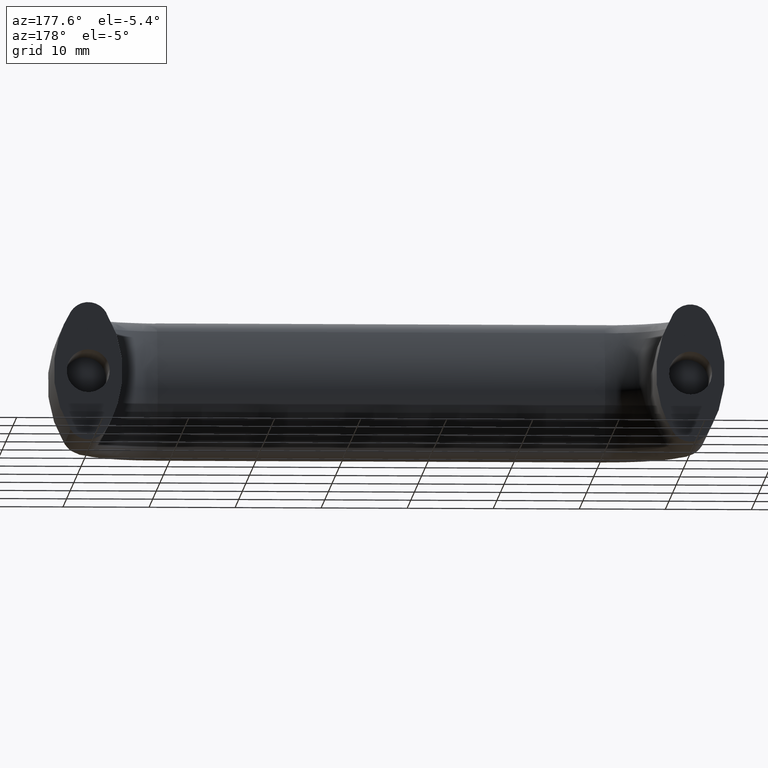
[diagram: clean part render]
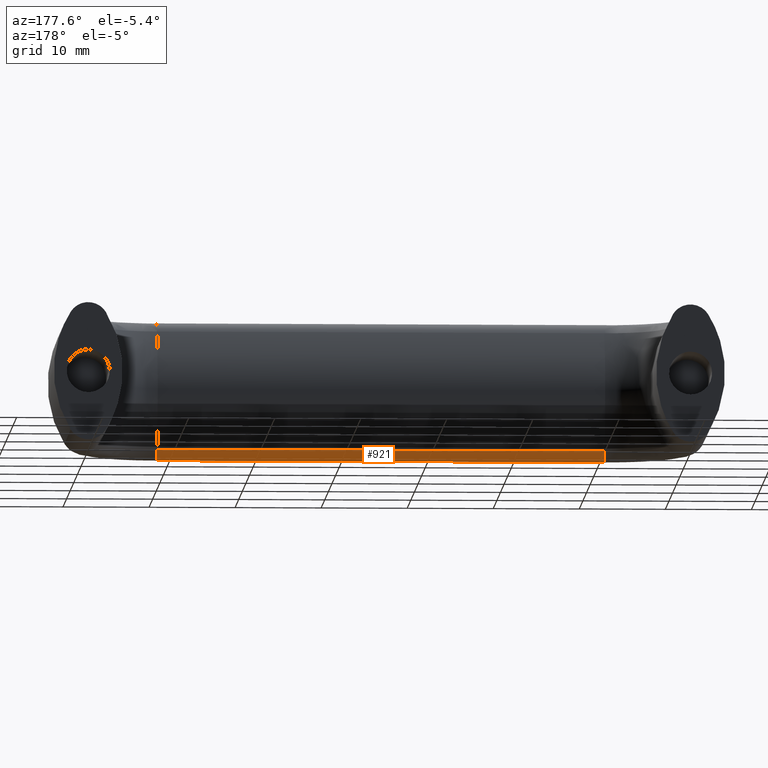
[diagram: same view with one face highlighted and labeled with its STEP entity id]
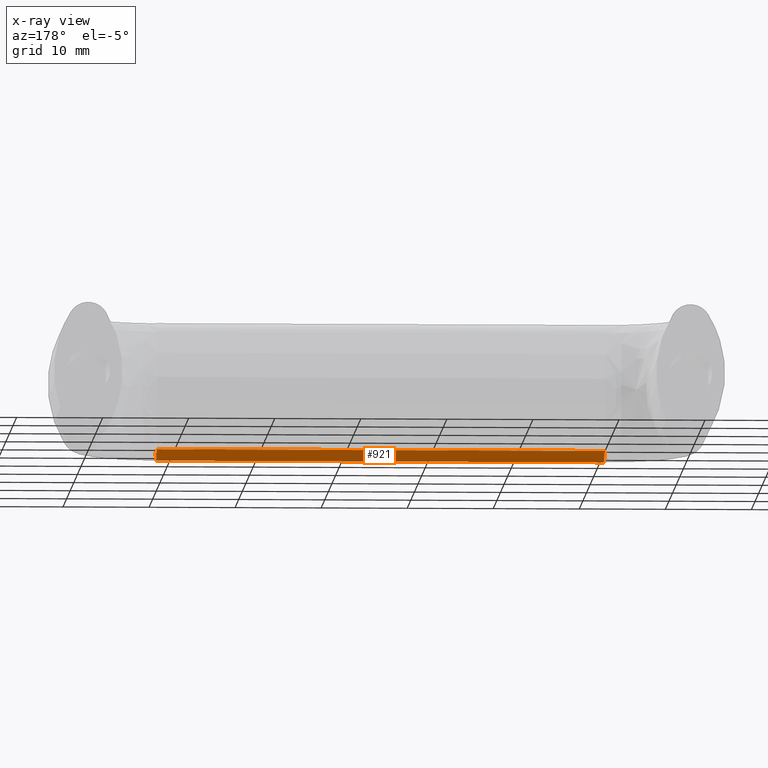
[diagram: x-ray of the same camera — body ghosted, the highlighted face saturated]
A machine part, auxiliary view. The second image highlights one B-rep face of the part: STEP entity #921.
The next image is the same camera in x-ray: the body ghosted, the highlighted face saturated — about 0% of this face is hidden behind the body in this view.
In plain terms, the highlighted face is a freeform B-spline surface patch.
Its self-contained STEP definition (entity closure, byte-faithful):
#676=CARTESIAN_POINT('',(61.0,-28.037735849056599,-6.867924528301869));
#677=VERTEX_POINT('',#676);
#691=CARTESIAN_POINT('',(61.0,-23.962264150943401,-6.867924528301880));
#692=VERTEX_POINT('',#691);
#693=CARTESIAN_POINT('',(61.0,-23.962264150943390,-6.867924528301884));
#694=CARTESIAN_POINT('',(61.0,-24.666666666666671,-8.0));
#695=CARTESIAN_POINT('',(61.0,-26.0,-8.0));
#696=CARTESIAN_POINT('',(61.0,-27.333333333333343,-8.0));
#697=CARTESIAN_POINT('',(61.0,-28.037735849056610,-6.867924528301876));
#705=(BOUNDED_CURVE()B_SPLINE_CURVE(2,(#693,#694,#695,#696,#697),.UNSPECIFIED.,.F.,.U.)B_SPLINE_CURVE_WITH_KNOTS((3,2,3),(0.0,0.500000000000000,1.0),.UNSPECIFIED.)CURVE()GEOMETRIC_REPRESENTATION_ITEM()RATIONAL_B_SPLINE_CURVE((1.0,0.874157276121537,1.0,0.874157276121537,1.0))REPRESENTATION_ITEM(''));
#706=EDGE_CURVE('',#692,#677,#705,.T.);
#875=CARTESIAN_POINT('',(7.699999999999997,-23.951277153275068,-6.850093875397882));
#876=CARTESIAN_POINT('',(62.332500000000010,-23.951277153275068,-6.850093875397882));
#877=CARTESIAN_POINT('',(7.700000000000005,-26.116503259694881,-10.398585936552591));
#878=CARTESIAN_POINT('',(62.332500000000017,-26.116503259694863,-10.398585936552612));
#879=CARTESIAN_POINT('',(7.700000000000004,-28.106974476572368,-6.749199092878413));
#880=CARTESIAN_POINT('',(62.332500000000010,-28.106974476572368,-6.749199092878431));
#888=(BOUNDED_SURFACE()B_SPLINE_SURFACE(1,2,((#875,#877,#879),(#876,#878,#880)),.UNSPECIFIED.,.F.,.F.,.U.)B_SPLINE_SURFACE_WITH_KNOTS((2,2),(3,3),(0.0,54.632500000000007),(0.0,5.542562584220409),.UNSPECIFIED.)GEOMETRIC_REPRESENTATION_ITEM()RATIONAL_B_SPLINE_SURFACE(((1.0,0.500000000000000,1.0),(1.0,0.500000000000000,1.0)))REPRESENTATION_ITEM('')SURFACE());
#889=ORIENTED_EDGE('',*,*,#706,.T.);
#890=CARTESIAN_POINT('',(9.0,-28.037735849056599,-6.867924528301869));
#891=VERTEX_POINT('',#890);
#892=CARTESIAN_POINT('',(9.0,-28.037735849056599,-6.867924528301869));
#893=CARTESIAN_POINT('',(61.0,-28.037735849056599,-6.867924528301869));
#894=QUASI_UNIFORM_CURVE('',1,(#892,#893),.UNSPECIFIED.,.F.,.U.);
#895=EDGE_CURVE('',#891,#677,#894,.T.);
#896=ORIENTED_EDGE('',*,*,#895,.F.);
#897=CARTESIAN_POINT('',(9.0,-23.962264150943401,-6.867924528301880));
#898=VERTEX_POINT('',#897);
#899=CARTESIAN_POINT('',(9.0,-23.962264150943390,-6.867924528301884));
#900=CARTESIAN_POINT('',(9.0,-24.666666666666671,-8.0));
#901=CARTESIAN_POINT('',(9.0,-26.0,-8.0));
#902=CARTESIAN_POINT('',(9.0,-27.333333333333343,-8.0));
#903=CARTESIAN_POINT('',(9.0,-28.037735849056610,-6.867924528301876));
#911=(BOUNDED_CURVE()B_SPLINE_CURVE(2,(#899,#900,#901,#902,#903),.UNSPECIFIED.,.F.,.U.)B_SPLINE_CURVE_WITH_KNOTS((3,2,3),(0.0,0.500000000000000,1.0),.UNSPECIFIED.)CURVE()GEOMETRIC_REPRESENTATION_ITEM()RATIONAL_B_SPLINE_CURVE((1.0,0.874157276121537,1.0,0.874157276121537,1.0))REPRESENTATION_ITEM(''));
#912=EDGE_CURVE('',#898,#891,#911,.T.);
#913=ORIENTED_EDGE('',*,*,#912,.F.);
#914=CARTESIAN_POINT('',(9.0,-23.962264150943401,-6.867924528301880));
#915=CARTESIAN_POINT('',(61.0,-23.962264150943401,-6.867924528301880));
#916=QUASI_UNIFORM_CURVE('',1,(#914,#915),.UNSPECIFIED.,.F.,.U.);
#917=EDGE_CURVE('',#898,#692,#916,.T.);
#918=ORIENTED_EDGE('',*,*,#917,.T.);
#919=EDGE_LOOP('',(#889,#896,#913,#918));
#920=FACE_OUTER_BOUND('',#919,.T.);
#921=ADVANCED_FACE('',(#920),#888,.T.);